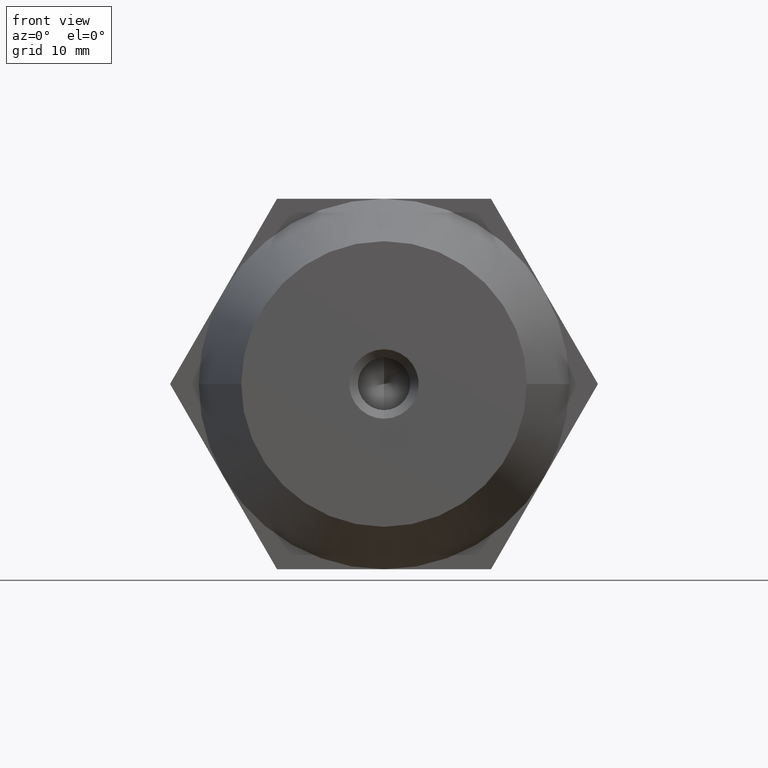
[diagram: clean part render]
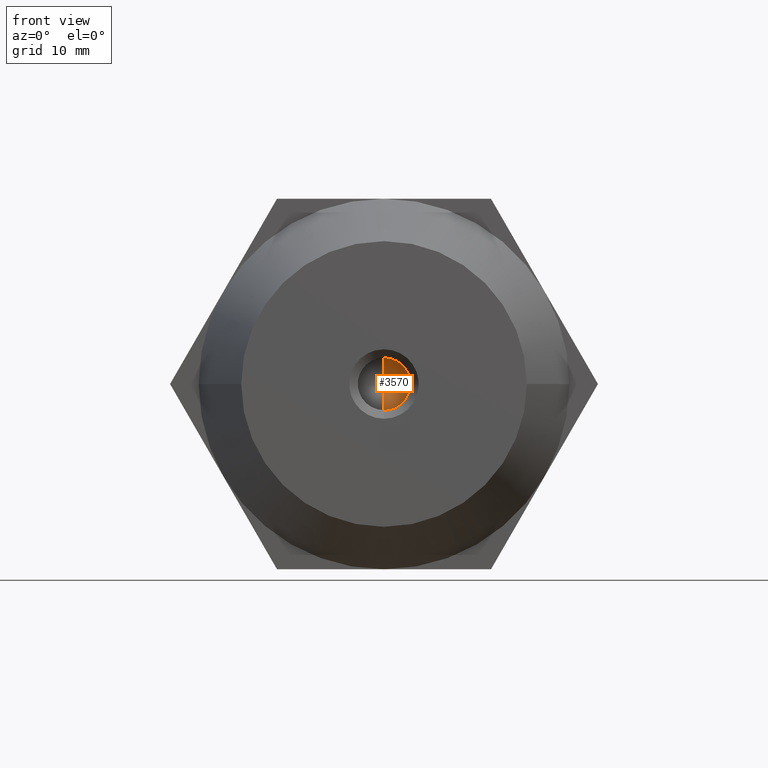
[diagram: same view with one face highlighted and labeled with its STEP entity id]
A machine part, front view. The second image highlights one B-rep face of the part: STEP entity #3570.
In plain terms, the highlighted conical surface has half-angle 59 deg.
Its self-contained STEP definition (entity closure, byte-faithful):
#3 = CARTESIAN_POINT ( 'NONE',  ( 0.0000000000000000000, 2.540000000000000000, 3.399999999999999900 ) ) ;
#256 = EDGE_CURVE ( 'NONE', #919, #1690, #1680, .T. ) ;
#361 = LINE ( 'NONE', #3003, #507 ) ;
#500 = CARTESIAN_POINT ( 'NONE',  ( -3.307263046647280300E-015, 0.4970738953062929800, 0.0000000000000000000 ) ) ;
#507 = VECTOR ( 'NONE', #1533, 999.9999999999998900 ) ;
#654 = AXIS2_PLACEMENT_3D ( 'NONE', #3429, #1982, #3408 ) ;
#859 = ORIENTED_EDGE ( 'NONE', *, *, #1152, .F. ) ;
#919 = VERTEX_POINT ( 'NONE', #3 ) ;
#1141 = EDGE_LOOP ( 'NONE', ( #859, #2983, #1686 ) ) ;
#1152 = EDGE_CURVE ( 'NONE', #2156, #1690, #3412, .T. ) ;
#1170 = DIRECTION ( 'NONE',  ( 1.049727191138618200E-016, 0.5150380749100549300, -0.8571673007021118900 ) ) ;
#1462 = AXIS2_PLACEMENT_3D ( 'NONE', #2903, #1771, #3473 ) ;
#1533 = DIRECTION ( 'NONE',  ( 0.0000000000000000000, 0.5150380749100549300, 0.8571673007021118900 ) ) ;
#1680 = CIRCLE ( 'NONE', #1462, 3.399999999999999900 ) ;
#1686 = ORIENTED_EDGE ( 'NONE', *, *, #256, .T. ) ;
#1690 = VERTEX_POINT ( 'NONE', #2931 ) ;
#1771 = DIRECTION ( 'NONE',  ( 0.0000000000000000000, 1.000000000000000000, 0.0000000000000000000 ) ) ;
#1975 = EDGE_CURVE ( 'NONE', #2156, #919, #361, .T. ) ;
#1982 = DIRECTION ( 'NONE',  ( 0.0000000000000000000, 1.000000000000000000, 0.0000000000000000000 ) ) ;
#1986 = CARTESIAN_POINT ( 'NONE',  ( 4.163799117101000600E-016, 2.540000000000000000, -3.399999999999999900 ) ) ;
#2156 = VERTEX_POINT ( 'NONE', #500 ) ;
#2419 = CONICAL_SURFACE ( 'NONE', #654, 3.399999999999999900, 1.029744258676653600 ) ;
#2433 = VECTOR ( 'NONE', #1170, 999.9999999999998900 ) ;
#2903 = CARTESIAN_POINT ( 'NONE',  ( 0.0000000000000000000, 2.540000000000000000, 0.0000000000000000000 ) ) ;
#2931 = CARTESIAN_POINT ( 'NONE',  ( 4.163799117101000600E-016, 2.540000000000000000, -3.399999999999999900 ) ) ;
#2983 = ORIENTED_EDGE ( 'NONE', *, *, #1975, .T. ) ;
#3003 = CARTESIAN_POINT ( 'NONE',  ( 0.0000000000000000000, 2.540000000000000000, 3.399999999999999900 ) ) ;
#3175 = FACE_OUTER_BOUND ( 'NONE', #1141, .T. ) ;
#3408 = DIRECTION ( 'NONE',  ( 0.0000000000000000000, 0.0000000000000000000, 1.000000000000000000 ) ) ;
#3412 = LINE ( 'NONE', #1986, #2433 ) ;
#3429 = CARTESIAN_POINT ( 'NONE',  ( 0.0000000000000000000, 2.540000000000000000, 0.0000000000000000000 ) ) ;
#3473 = DIRECTION ( 'NONE',  ( 0.0000000000000000000, 0.0000000000000000000, 1.000000000000000000 ) ) ;
#3570 = ADVANCED_FACE ( 'NONE', ( #3175 ), #2419, .F. ) ;